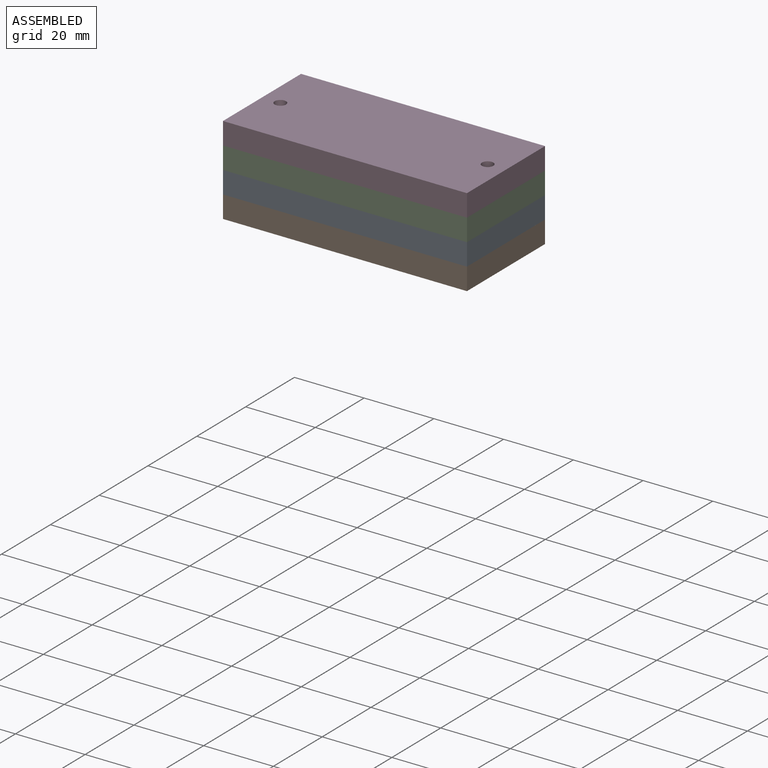
[diagram: assembled view]
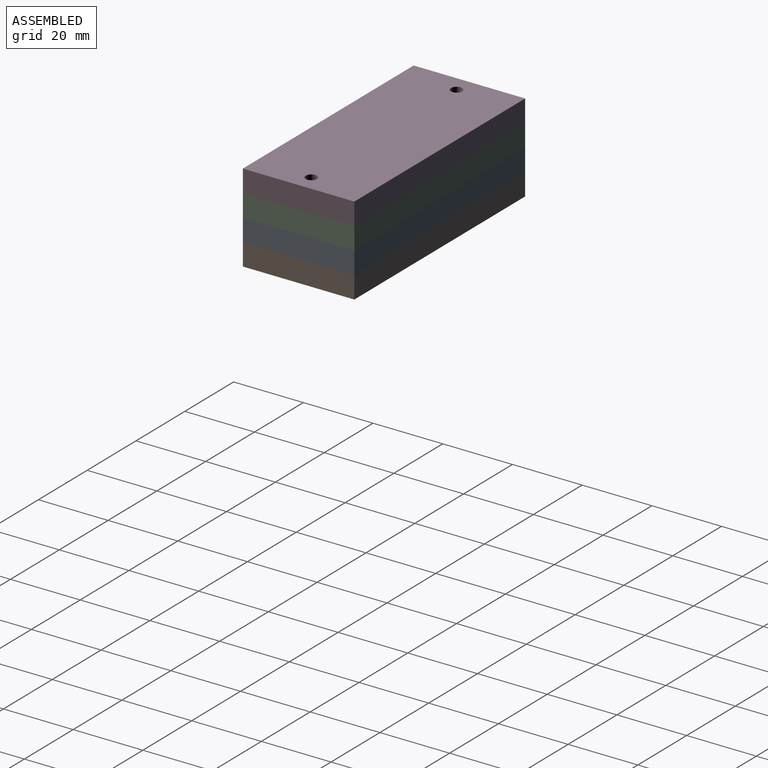
[diagram: assembled view, second angle]
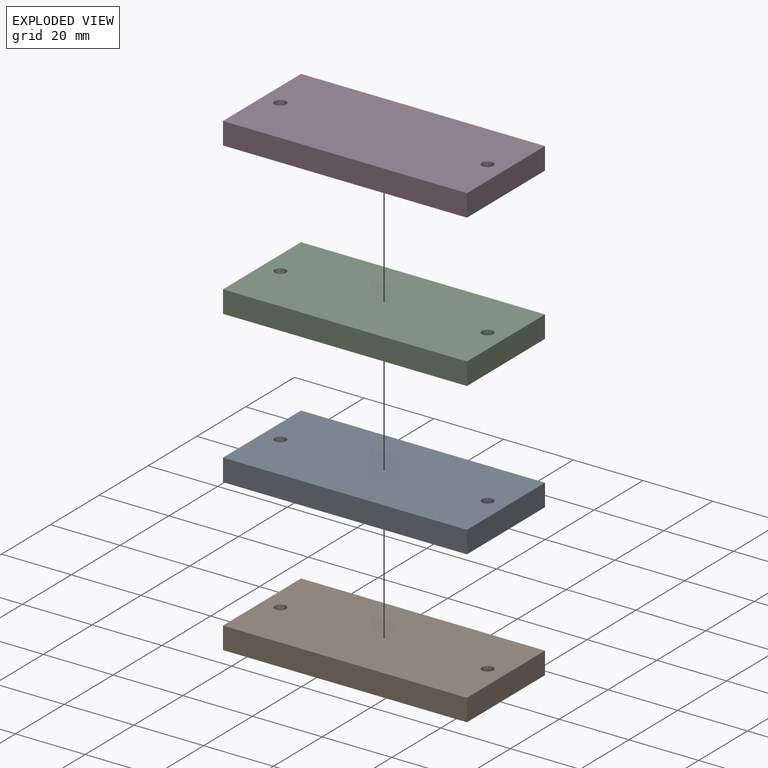
[diagram: exploded view]
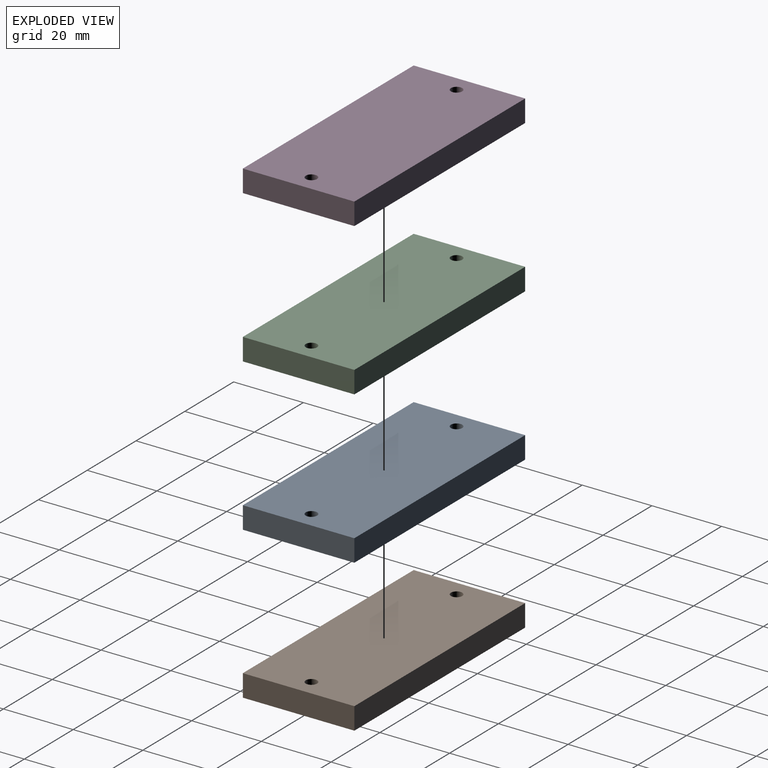
[diagram: exploded view, second angle]
ASSEMBLY  parts=4 mates=3
PART A: 8 faces, bbox 70x32x6.4 mm
  f0: plane 32x6.35mm, normal (1,0,0), area 203.2mm2, adj f1,f4,f6,f7
  f1: plane 70x6.35mm, normal (0,1,0), area 444.5mm2, adj f0,f2,f6,f7
  f2: plane 32x6.35mm, normal (-1,0,0), area 203.2mm2, adj f1,f4,f6,f7
  f3: cylinder r=1.62mm len=6.35mm, axis (0,0,-1), area 64.8mm2, adj f6,f7
  f4: plane 70x6.35mm, normal (0,-1,0), area 444.5mm2, adj f0,f2,f6,f7
  f5: cylinder r=1.62mm len=6.35mm, axis (0,0,-1), area 64.8mm2, adj f6,f7
  f6: plane 70x32mm, normal (0,0,1), area 2223.4mm2, adj f0,f1,f2,f3,f4,f5
  f7: plane 70x32mm, normal (0,0,-1), area 2223.4mm2, adj f0,f1,f2,f3,f4,f5
PART B: same geometry as A
PART C: same geometry as A
PART D: same geometry as A
PLACE A t=(29.73,0,-38.1)mm
PLACE B t=(29.73,0,-44.45)mm
PLACE C t=(29.73,0,-31.75)mm
PLACE D t=(29.73,0,-25.4)mm
MATE fastened A.f3 <-> C.f3  axis (0,0,1) through (0,0,-31.75)mm
MATE fastened C.f3 <-> D.f3  axis (0,0,1) through (0,0,-25.4)mm
MATE fastened B.f3 <-> A.f3  axis (0,0,1) through (0,0,-38.1)mm
